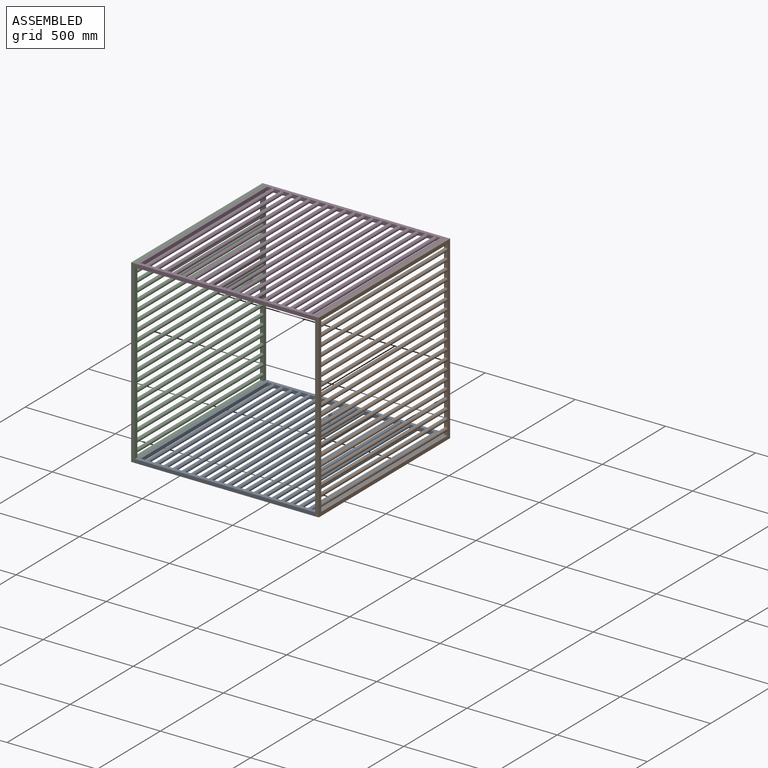
[diagram: assembled view]
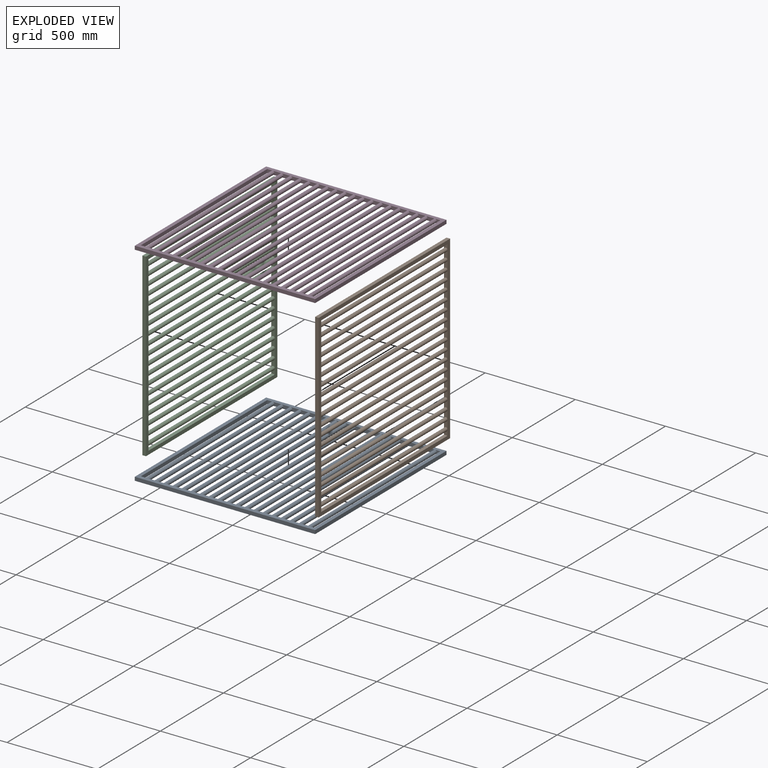
[diagram: exploded view]
GUIDED TOUR — MATED ASSEMBLY WITH SUBASSEMBLIES (Onshape document 1bd05485b785092733213c2f, AutoMate assembly 1bd05485b785092733213c2f_b403f58cdeab96ca88b5c3e0_9f642010b86d06a3bdad1627_default)

This assembly has 16 component occurrences arranged in 4 top-level units: 0 individual components plus 4 subassemblies (S0, S1, S2, S3). The tour has two levels: first the top level, where each subassembly is treated as one rigid unit; then each subassembly is toured internally in its own section (nesting deeper than one subassembly level is flattened into its subassembly's section).

Components are labeled P0..P15 across the whole record; subassembly units are labeled S0..S3. A mate is a constraint between two units; its type names the relative motion it leaves free:
  PLANAR — leaves sliding in the plane through the listed point (normal = the listed direction) and rotation about that normal free.
Axis/direction vectors are unit vectors and 'through' points are millimeter coordinates, both in the assembly's world frame.

TOP-LEVEL MATES (between units; each subassembly's internal mates are listed in its own section)
  1. PLANAR "Planar 8": S1 <-> S0, direction (0.000, 0.000, -1.000) through (-698.11, -170.96, -901.85) mm
  2. PLANAR "Planar 4": S1 <-> S3, direction (0.000, 0.000, 1.000) through (-698.11, -670.96, 98.15) mm
  3. PLANAR "Planar 7": S2 <-> S0, direction (0.000, 1.000, 0.000) through (-1718.11, 349.04, -401.85) mm
  4. PLANAR "Planar 2": S3 <-> S2, direction (-1.000, 0.000, 0.000) through (-1708.11, -170.96, 88.15) mm
  5. PLANAR "Planar 6": S0 <-> S1, direction (0.000, -1.000, 0.000) through (-708.11, -690.96, -881.85) mm
  6. PLANAR "Planar 5": S0 <-> S1, direction (1.000, 0.000, 0.000) through (-708.11, -170.96, -891.85) mm
  7. PLANAR "Planar 3": S3 <-> S2, direction (0.000, 0.000, 1.000) through (-1698.11, -170.96, 98.15) mm
  8. PLANAR "Planar 1": S3 <-> S1, direction (1.000, 0.000, 0.000) through (-708.11, -170.96, 88.15) mm

TOP-LEVEL ASSEMBLY ORDER
  1. S3 — the base component [order verified]
  2. S1 [order verified]
  3. S2 [order verified]
  4. S0 [order verified]
Order-tag legend:
  [order verified] — this step's position reverses a verified removal order: the component was checked to insert without passing through the ones already placed.

Of the 16 component occurrences, 4 carry the full construction recipe — the FeatureScript program that regenerates the part's solid from scratch; the rest are supplied as boundary geometry only. Each toured unit is shown spotlighted twice — assembled, then exploded with a leader line back to its socket (green = recipe-attached component, orange = geometry-only, blue = subassembly unit; the rest desaturated gray).
NOTE — this tour is split across 2 documents so each fits a 32k-token context. This is document 1: the component sections continue in the remaining 1 document, each repeating the header above.
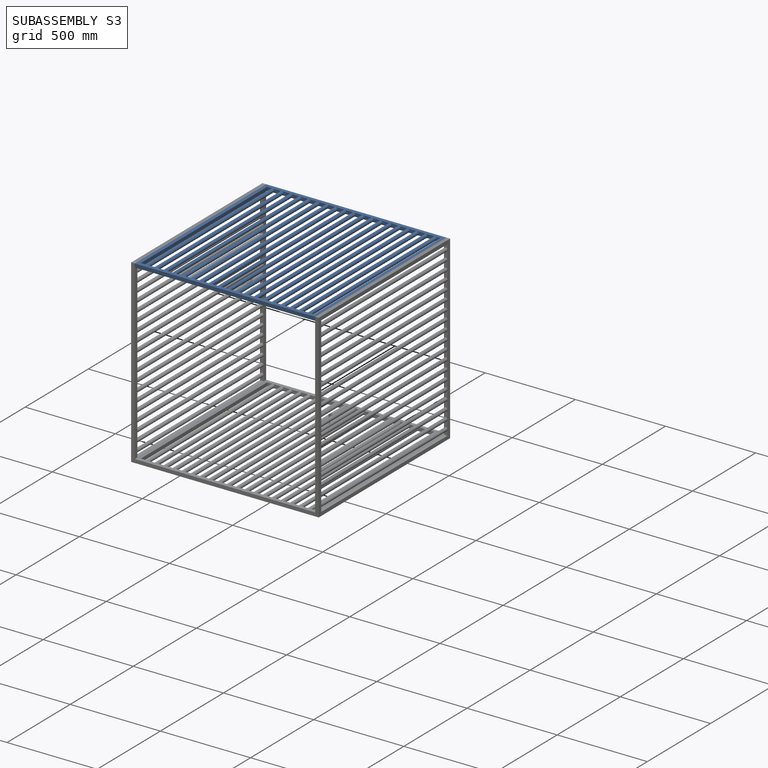
[diagram: subassembly S3 — assembled]
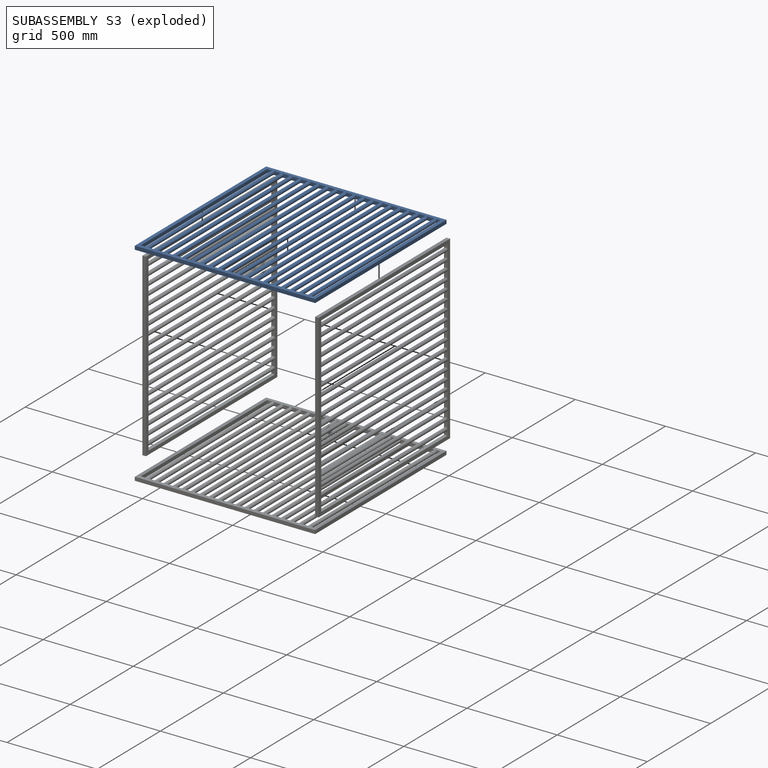
[diagram: subassembly S3 — exploded]
SUBASSEMBLY S3 — 4 components (P9, P10, P11, P15), of which 1 recipe-attached; toured below.
Held by: PLANAR mate "Planar 4" to S1; PLANAR mate "Planar 2" to S2; PLANAR mate "Planar 3" to S2; PLANAR mate "Planar 1" to S1.
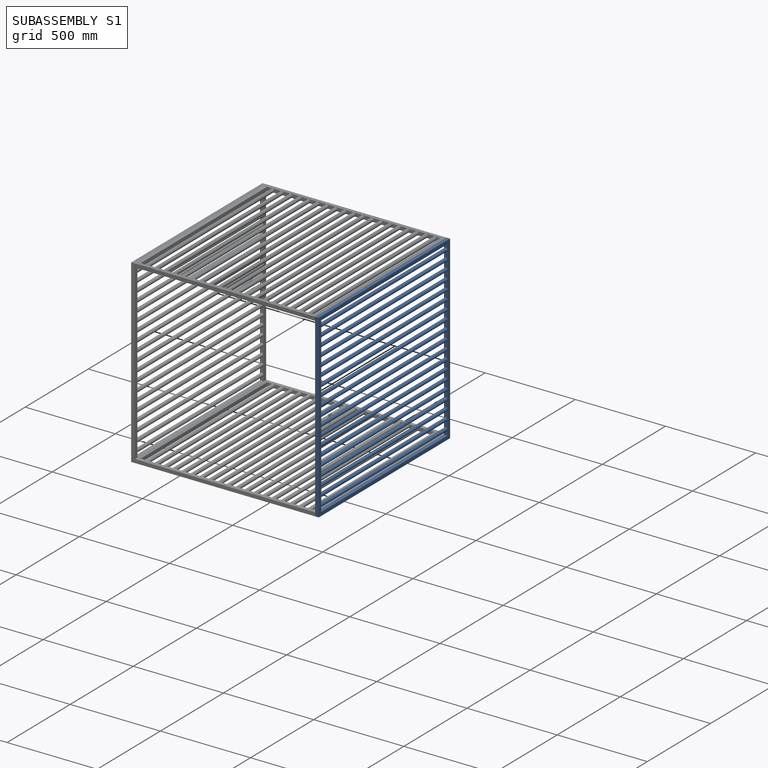
[diagram: subassembly S1 — assembled]
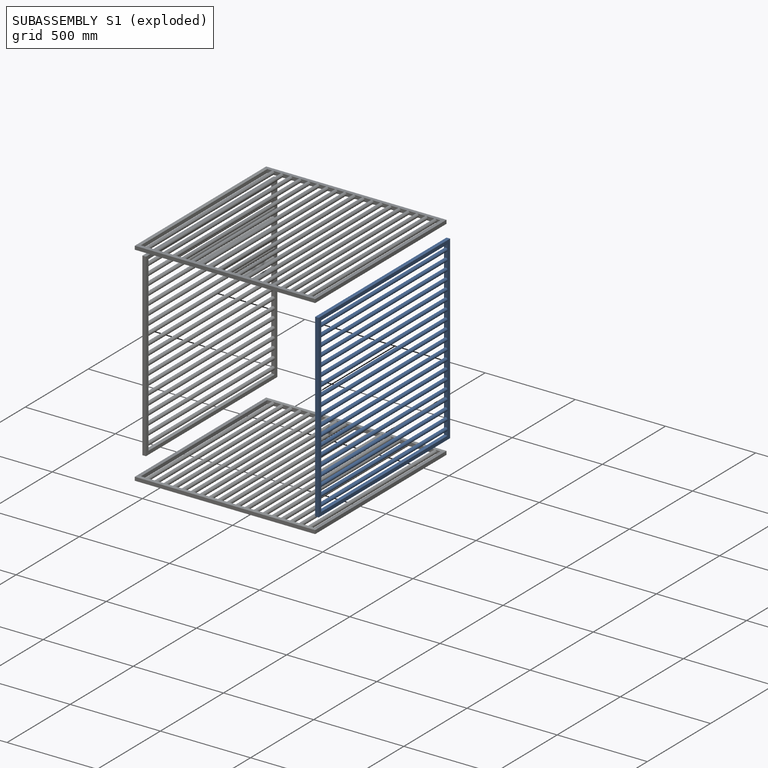
[diagram: subassembly S1 — exploded]
SUBASSEMBLY S1 — 4 components (P1, P3, P8, P14), of which 1 recipe-attached; toured below.
Held by: PLANAR mate "Planar 8" to S0; PLANAR mate "Planar 4" to S3; PLANAR mate "Planar 6" to S0; PLANAR mate "Planar 5" to S0; PLANAR mate "Planar 1" to S3.
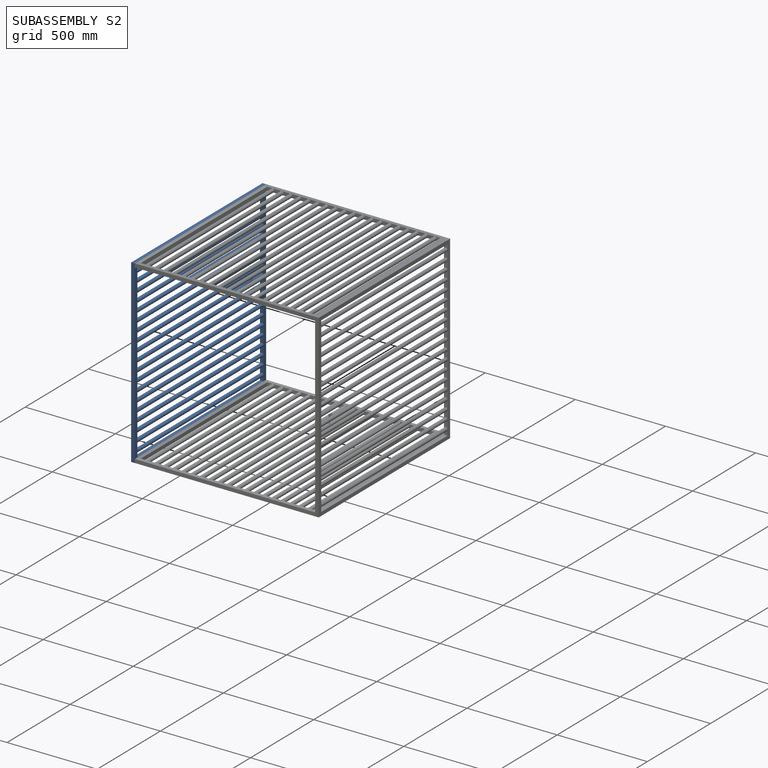
[diagram: subassembly S2 — assembled]
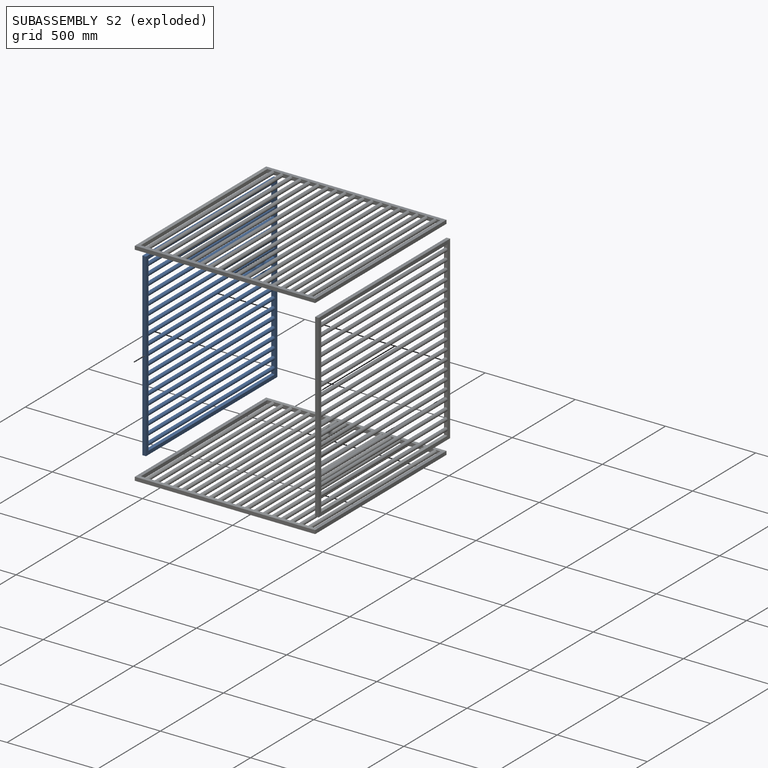
[diagram: subassembly S2 — exploded]
SUBASSEMBLY S2 — 4 components (P2, P4, P6, P13), of which 1 recipe-attached; toured below.
Held by: PLANAR mate "Planar 7" to S0; PLANAR mate "Planar 2" to S3; PLANAR mate "Planar 3" to S3.
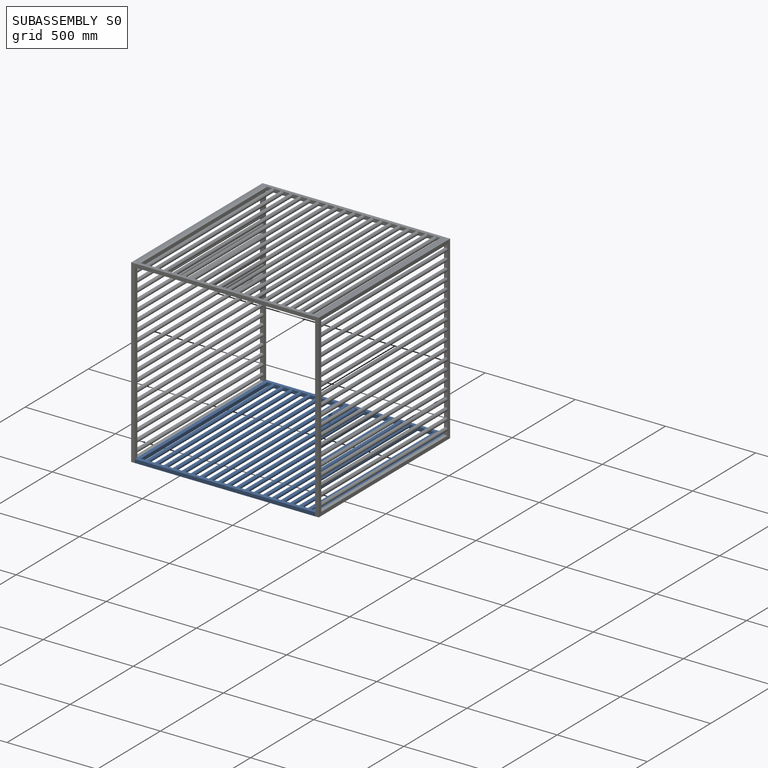
[diagram: subassembly S0 — assembled]
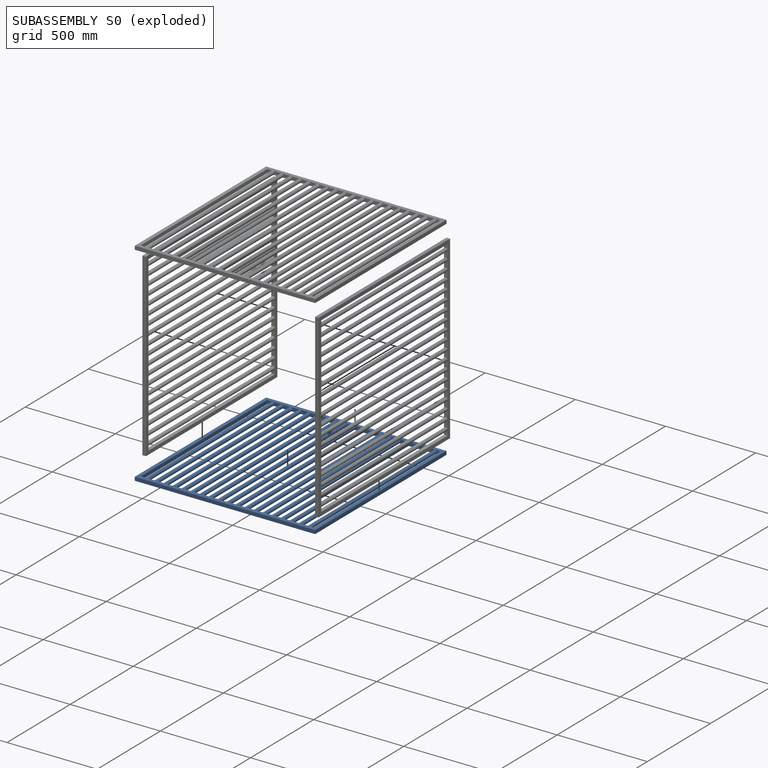
[diagram: subassembly S0 — exploded]
SUBASSEMBLY S0 — 4 components (P0, P5, P7, P12), of which 1 recipe-attached; toured below.
Held by: PLANAR mate "Planar 8" to S1; PLANAR mate "Planar 7" to S2; PLANAR mate "Planar 6" to S1; PLANAR mate "Planar 5" to S1.
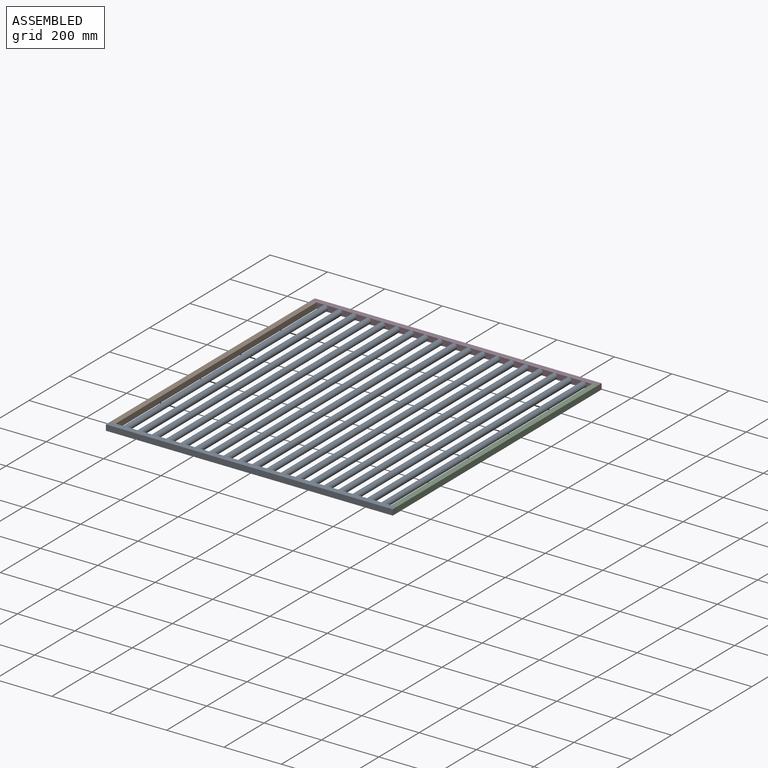
[diagram: subassembly S0 — assembled view]
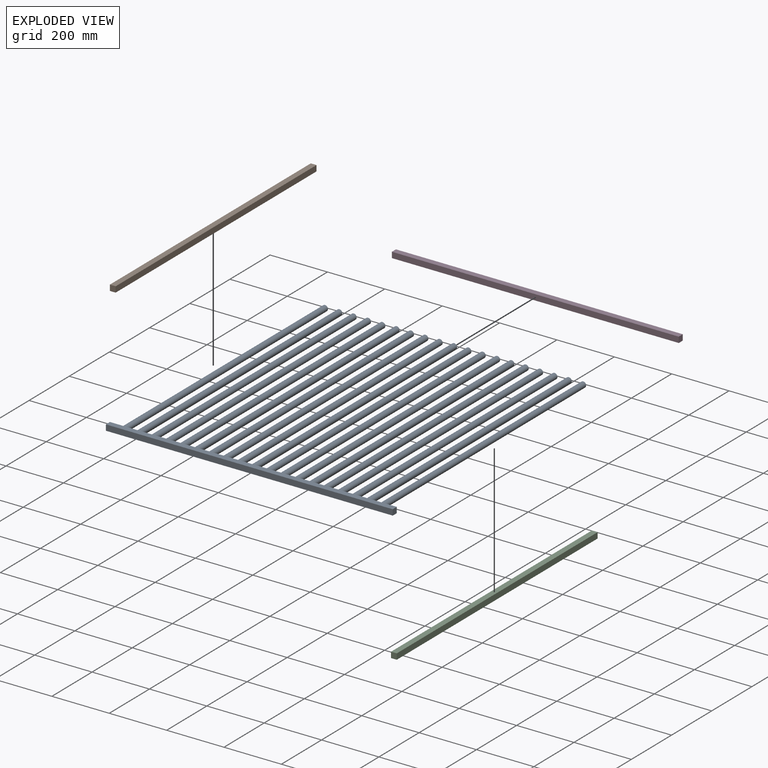
[diagram: subassembly S0 — exploded view]
SUBASSEMBLY S0 TOUR — 4 components, shown here in isolation at its own camera.

INTERNAL MATES
  1. PLANAR "Planar 6": P0 <-> P7, direction (0.000, 0.000, -1.000) through (-1208.11, -680.96, -901.85) mm
  2. PLANAR "Planar 5": P7 <-> P0, direction (0.000, -1.000, 0.000) through (-718.11, -670.96, -891.85) mm
  3. PLANAR "Planar 3": P12 <-> P7, direction (0.000, 0.000, -1.000) through (-1208.11, 339.04, -901.85) mm
  4. PLANAR "Planar 2": P5 <-> P12, direction (-1.000, 0.000, 0.000) through (-1708.11, -170.96, -891.85) mm
  5. PLANAR "Planar 4": P7 <-> P12, direction (1.000, 0.000, 0.000) through (-708.11, -170.96, -891.85) mm
  6. PLANAR "Planar 1": P12 <-> P5, direction (0.000, 0.000, -1.000) through (-1208.11, 339.04, -901.85) mm
  7. PLANAR "Planar 7": P0 <-> P5, direction (-1.000, 0.000, 0.000) through (-1708.11, -680.96, -891.85) mm

ASSEMBLY ORDER (within the subassembly)
  1. P0 — the base component [order verified]
  2. P5 [order verified]
  3. P7 [order verified]
  4. P12 [order verified]
Order-tag legend:
  [order verified] — this step's position reverses a verified removal order: the component was checked to insert without passing through the ones already placed.
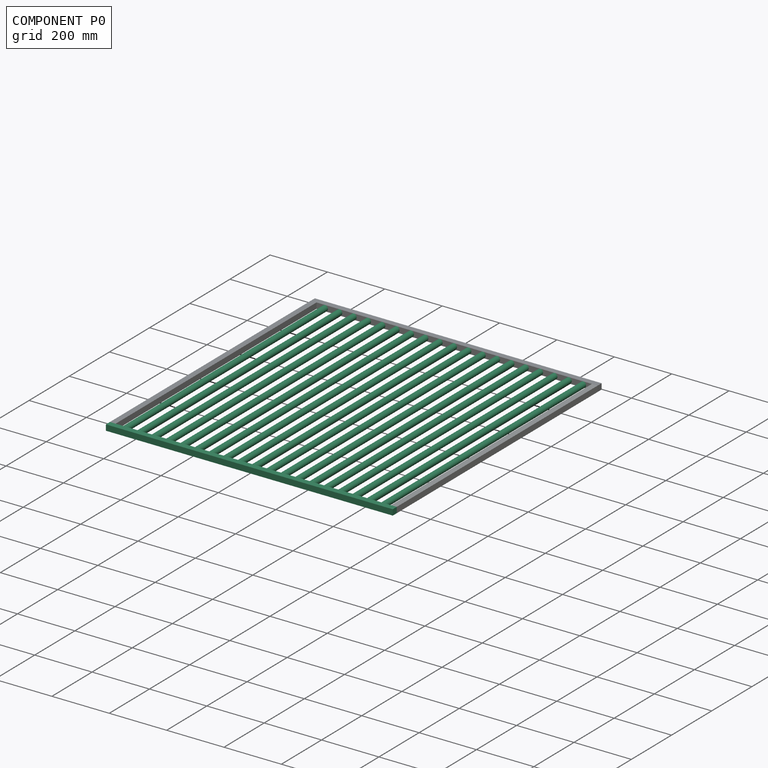
[diagram: component P0 — assembled]
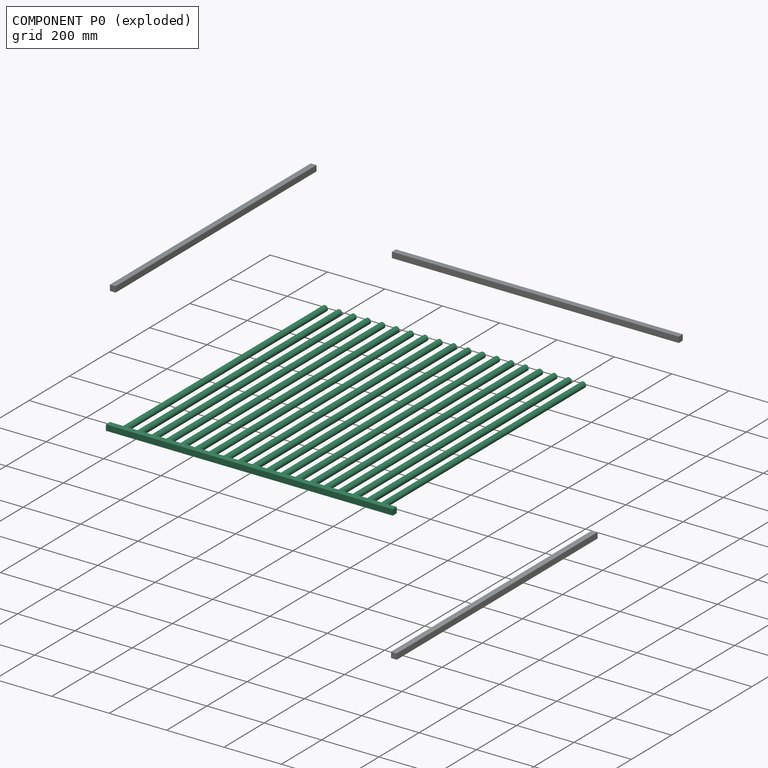
[diagram: component P0 — exploded]
COMPONENT P0 — recipe-attached (CADFS 00156096, mesh-verified: the recipe's output STEP matches this component's geometry to below the mesh-comparison resolution (tessellation chordal tolerance ~2.14 mm)).
Held by: PLANAR mate "Planar 6" to P7; PLANAR mate "Planar 5" to P7; PLANAR mate "Planar 7" to P5.
Construction recipe (FeatureScript — the CAD program that rebuilds this solid; sketch coordinates are in the units given by the * unit suffixes, e.g. mm):

FeatureScript 1511;
import(path : "onshape/std/geometry.fs", version : "1511.0");
import(path : "onshape/std/common.fs", version : "1511.0");
const mm = millimeter;
const VERTEX = EntityType.VERTEX;
const EDGE = EntityType.EDGE;
const FACE = EntityType.FACE;
const BODY = EntityType.BODY;
function v(x, y){return vector(x, y);}
function OD(order){return orderDisambiguation(order);}
function OSD(set){return originalSetDisambiguation(set);}
function TD(topology){return topologyDisambiguation(topology);}
function TDD(query){return trueDependencyDisambiguation(query);}
function sQuery(a, b, c) {return sketchEntityQuery(a, b, c);}

annotation { "Feature Type Name" : "Feature", "Feature Type Description" : "" }
export const myFeature = defineFeature(function(context is Context, id is Id, definition is map)
    precondition{}
    {
        {
            var Q0;
            Q0=qCreatedBy(makeId("Front.planeOp"),FACE);
            var sketch = newSketch(context, id + "F0", { "sketchPlane" : qUnion([Q0])});
            skLineSegment(sketch, "E0.bottom", {"start": v(0, 0) * mm, "end": v(20, 0) * mm});
            skLineSegment(sketch, "E0.top", {"start": v(0, 20) * mm, "end": v(20, 20) * mm});
            skLineSegment(sketch, "E0.left", {"start": v(0, 0) * mm, "end": v(0, 20) * mm});
            skLineSegment(sketch, "E0.right", {"start": v(20, 0) * mm, "end": v(20, 20) * mm});
            skSolve(sketch);
        }
        {
            var Q0;
            Q0=makeQuery(id+"F0.imprint","IMPRINT",FACE,{"disambiguationData":[TD([[makeQuery(id+"F0.imprint","IMPRINT",EDGE,{"derivedFrom":sQuery(id+"F0.wireOp",EDGE,"E0.bottom")}),1.0]])]});
            extrude(context, id + "F1", {"entities" : qUnion([Q0]), "depth" : 1000 * mm});
        }
        {
            var Q0;
            Q0=makeQuery(id+"F1.opExtrude","SWEPT_FACE",FACE,{"disambiguationData":[OSD([sQuery(id+"F0.wireOp",EDGE,"E0.top")])]});
            var sketch = newSketch(context, id + "F2", { "sketchPlane" : qUnion([Q0])});
            skCircle(sketch, "E1", {"center": v(10, -50) * mm, "radius": 10 * mm});
            skCircle(sketch, "E2.0.1.0", {"center": v(10, -100) * mm, "radius": 10 * mm});
            skCircle(sketch, "E2.0.2.0", {"center": v(10, -150) * mm, "radius": 10 * mm});
            skCircle(sketch, "E2.0.3.0", {"center": v(10, -200) * mm, "radius": 10 * mm});
            skCircle(sketch, "E2.0.4.0", {"center": v(10, -250) * mm, "radius": 10 * mm});
            skCircle(sketch, "E2.0.5.0", {"center": v(10, -300) * mm, "radius": 10 * mm});
            skCircle(sketch, "E2.0.6.0", {"center": v(10, -350) * mm, "radius": 10 * mm});
            skCircle(sketch, "E2.0.7.0", {"center": v(10, -400) * mm, "radius": 10 * mm});
            skCircle(sketch, "E2.0.8.0", {"center": v(10, -450) * mm, "radius": 10 * mm});
            skCircle(sketch, "E2.0.9.0", {"center": v(10, -500) * mm, "radius": 10 * mm});
            skCircle(sketch, "E2.0.10.0", {"center": v(10, -550) * mm, "radius": 10 * mm});
            skCircle(sketch, "E2.0.11.0", {"center": v(10, -600) * mm, "radius": 10 * mm});
            skCircle(sketch, "E2.0.12.0", {"center": v(10, -650) * mm, "radius": 10 * mm});
            skCircle(sketch, "E2.0.13.0", {"center": v(10, -700) * mm, "radius": 10 * mm});
            skCircle(sketch, "E2.0.14.0", {"center": v(10, -750) * mm, "radius": 10 * mm});
            skCircle(sketch, "E2.0.15.0", {"center": v(10, -800) * mm, "radius": 10 * mm});
            skCircle(sketch, "E2.0.16.0", {"center": v(10, -850) * mm, "radius": 10 * mm});
            skCircle(sketch, "E2.0.17.0", {"center": v(10, -900) * mm, "radius": 10 * mm});
            skCircle(sketch, "E2.0.18.0", {"center": v(10, -950) * mm, "radius": 10 * mm});
            skLineSegment(sketch, "E2.direction1", {"start": v(10, -50) * mm, "end": v(-20.45, -50) * mm, "construction": true});
            skLineSegment(sketch, "E2.direction2", {"start": v(10, -50) * mm, "end": v(10, -100) * mm, "construction": true});
            skSolve(sketch);
        }
        {
            var Q0;
            Q0 = qSketchRegion(id + "F2", true);
            extrude(context, id + "F3", {"entities" : qUnion([Q0]), "operationType" : NewBodyOperationType.ADD, "depth" : 1000 * mm});
        }
    });
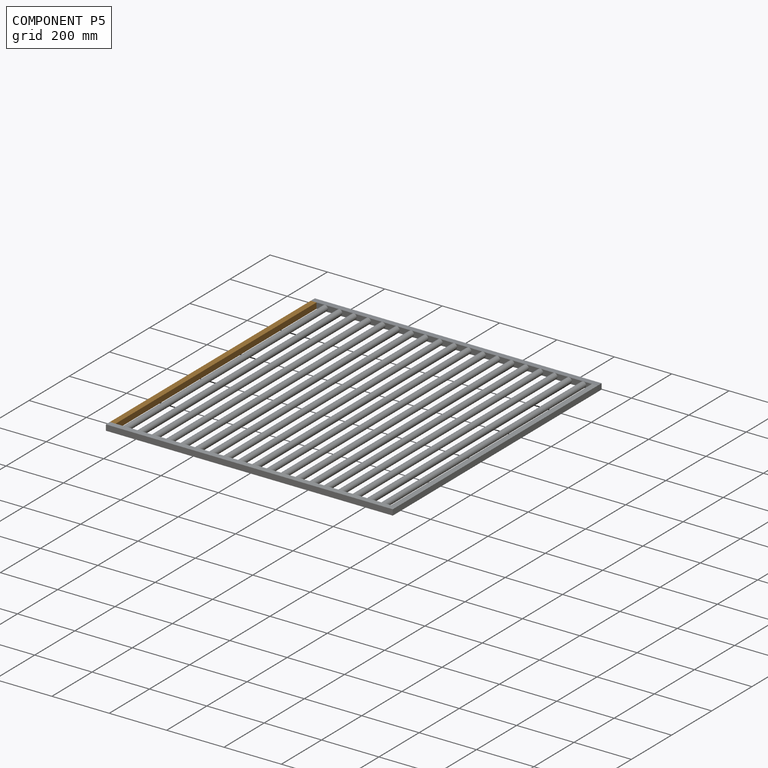
[diagram: component P5 — assembled]
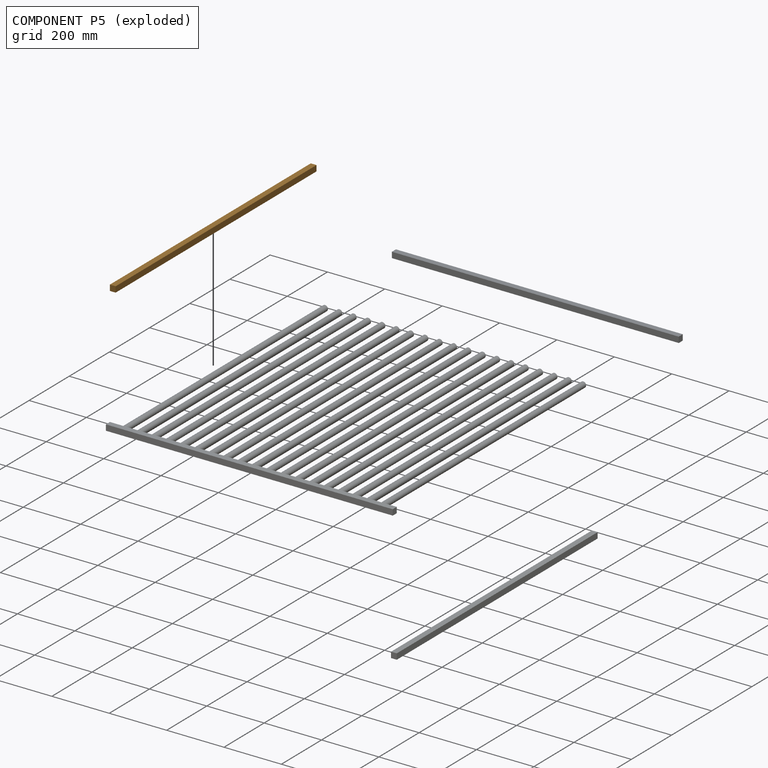
[diagram: component P5 — exploded]
COMPONENT P5 — geometry summary (no construction recipe available for this part):
  bounding box: 1000.0 x 20.0 x 20.0 mm
  B-rep topology: 1 solid, 6 faces, 24 edges
  volume: 400000 mm^3 (100% of its bounding box)
  symmetry: 2-fold rotationally symmetric about the x axis; revolution-symmetric about the y axis through its bounding-box center; 2-fold rotationally symmetric about the z axis; mirror-symmetric across its x mid-plane, y mid-plane, z mid-plane
Held by: PLANAR mate "Planar 2" to P12; PLANAR mate "Planar 1" to P12; PLANAR mate "Planar 7" to P0.
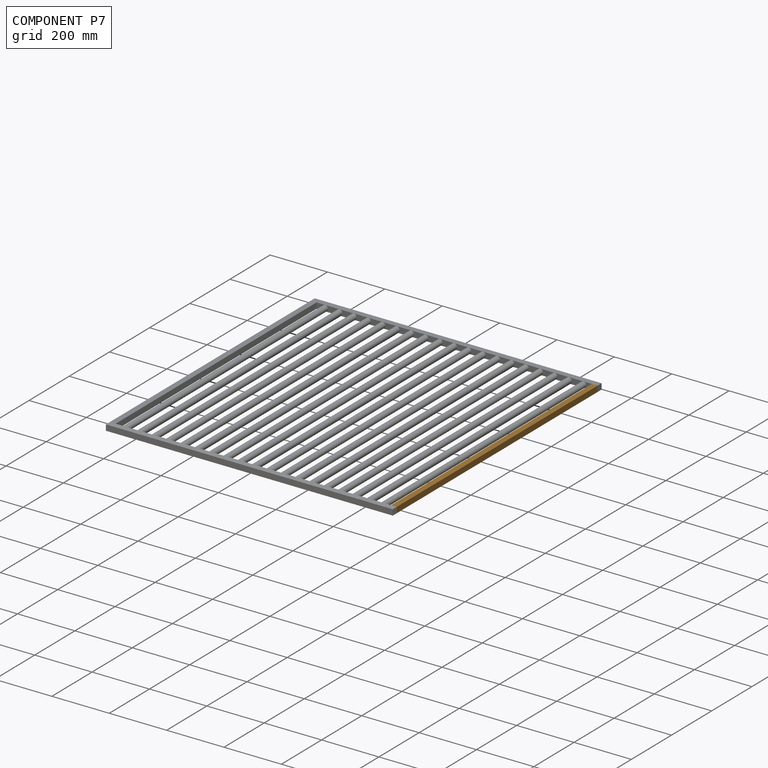
[diagram: component P7 — assembled]
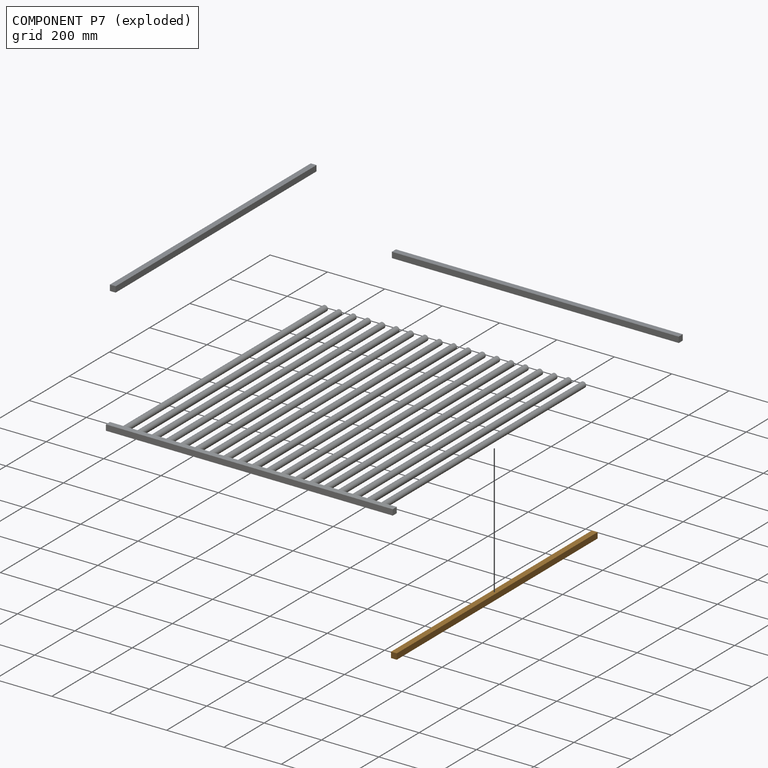
[diagram: component P7 — exploded]
COMPONENT P7 — geometry summary (no construction recipe available for this part):
  bounding box: 1000.0 x 20.0 x 20.0 mm
  B-rep topology: 1 solid, 6 faces, 24 edges
  volume: 400000 mm^3 (100% of its bounding box)
  symmetry: 2-fold rotationally symmetric about the x axis; revolution-symmetric about the y axis through its bounding-box center; 2-fold rotationally symmetric about the z axis; mirror-symmetric across its x mid-plane, y mid-plane, z mid-plane
Held by: PLANAR mate "Planar 6" to P0; PLANAR mate "Planar 5" to P0; PLANAR mate "Planar 3" to P12; PLANAR mate "Planar 4" to P12.
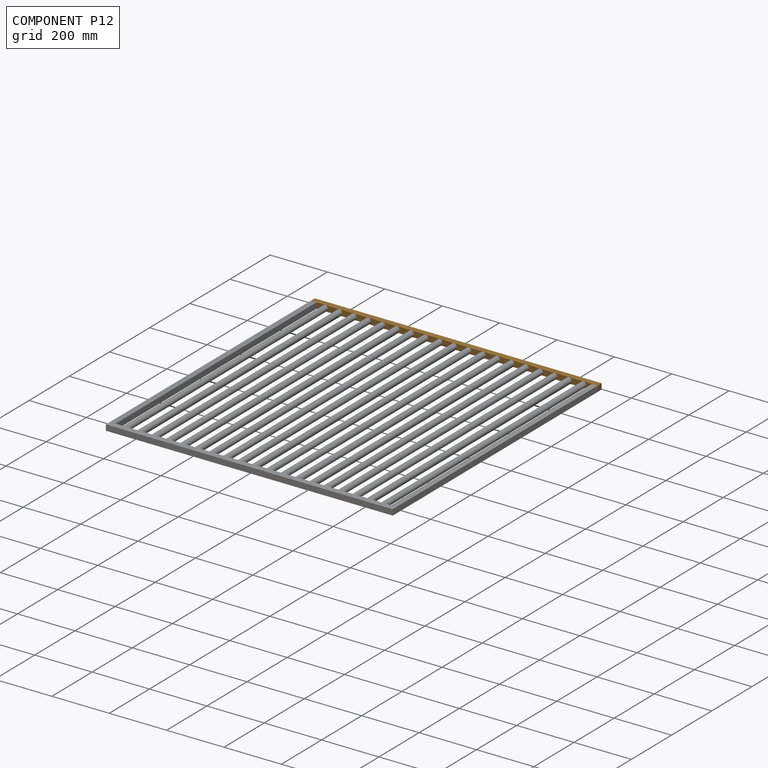
[diagram: component P12 — assembled]
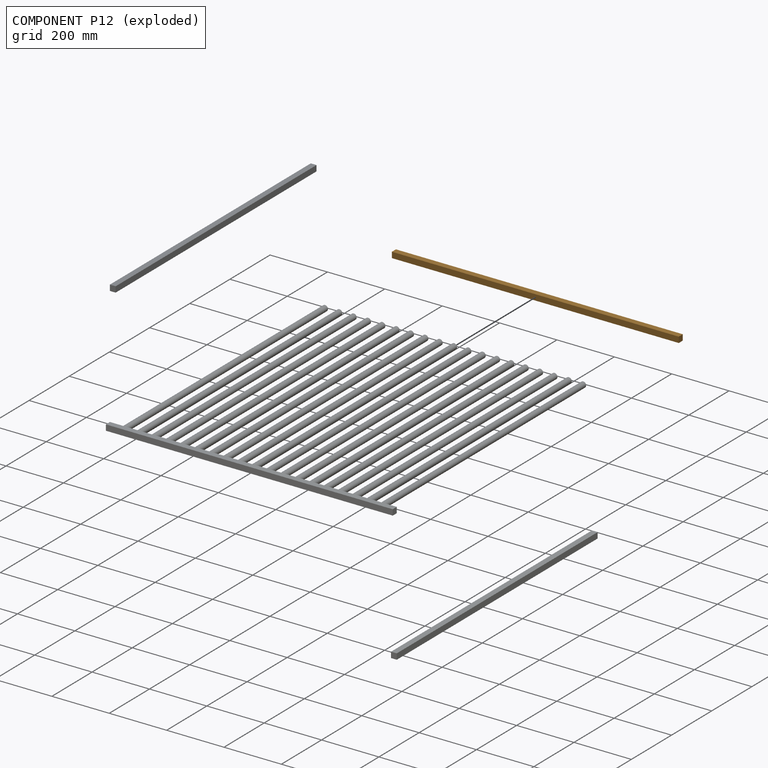
[diagram: component P12 — exploded]
COMPONENT P12 — geometry summary (no construction recipe available for this part):
  bounding box: 1000.0 x 20.0 x 20.0 mm
  B-rep topology: 1 solid, 6 faces, 24 edges
  volume: 400000 mm^3 (100% of its bounding box)
  symmetry: 2-fold rotationally symmetric about the x axis; revolution-symmetric about the y axis through its bounding-box center; 2-fold rotationally symmetric about the z axis; mirror-symmetric across its x mid-plane, y mid-plane, z mid-plane
Held by: PLANAR mate "Planar 3" to P7; PLANAR mate "Planar 2" to P5; PLANAR mate "Planar 4" to P7; PLANAR mate "Planar 1" to P5.
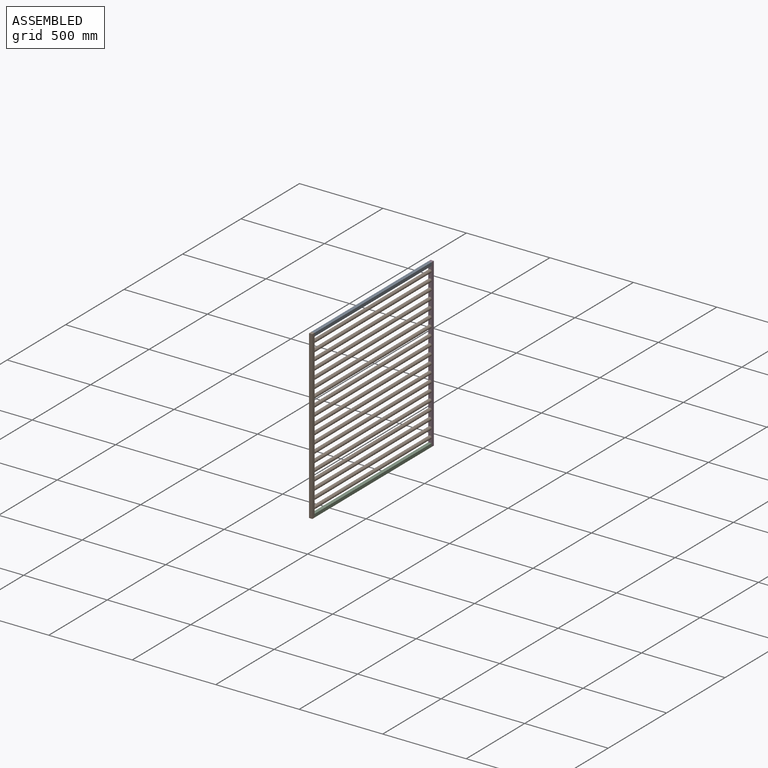
[diagram: subassembly S1 — assembled view]
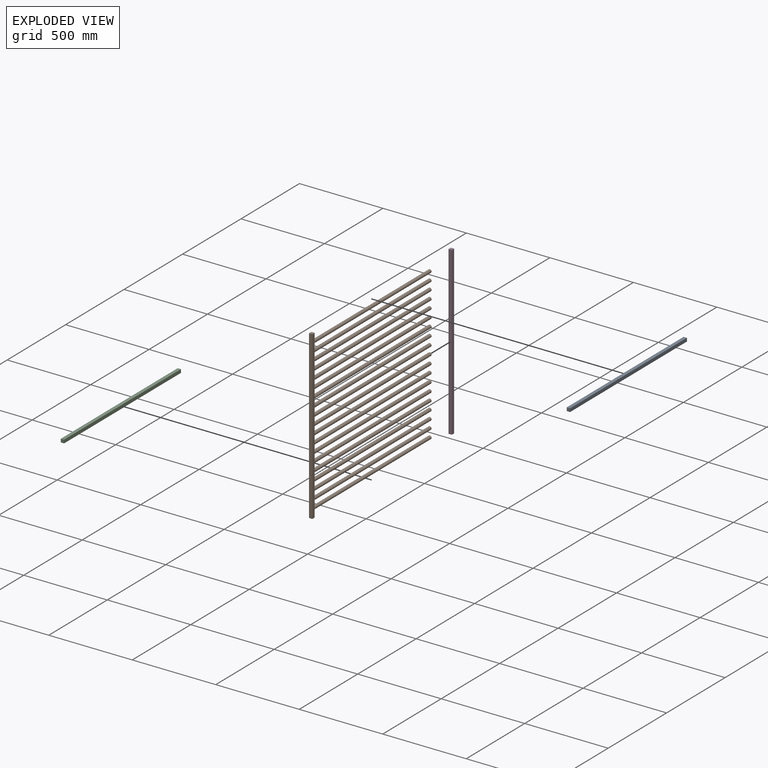
[diagram: subassembly S1 — exploded view]
SUBASSEMBLY S1 TOUR — 4 components, shown here in isolation at its own camera.

INTERNAL MATES
  1. PLANAR "Planar 3": P14 <-> P8, direction (-1.000, 0.000, 0.000) through (-708.11, 339.04, -401.85) mm
  2. PLANAR "Planar 1": P14 <-> P1, direction (-1.000, 0.000, 0.000) through (-708.11, 339.04, -401.85) mm
  3. PLANAR "Planar 7": P3 <-> P1, direction (0.000, 0.000, 1.000) through (-698.11, -680.96, 98.15) mm
  4. PLANAR "Planar 6": P3 <-> P8, direction (-1.000, 0.000, 0.000) through (-708.11, -680.96, -401.85) mm
  5. PLANAR "Planar 2": P1 <-> P14, direction (0.000, 0.000, 1.000) through (-698.11, -170.96, 98.15) mm
  6. PLANAR "Planar 4": P8 <-> P14, direction (0.000, 0.000, -1.000) through (-698.11, -170.96, -901.85) mm
  7. PLANAR "Planar 5": P8 <-> P3, direction (0.000, -1.000, 0.000) through (-698.11, -670.96, -891.85) mm

ASSEMBLY ORDER (within the subassembly)
  1. P3 — the base component [order verified]
  2. P1 [order verified]
  3. P8 [order verified]
  4. P14 [order verified]
Order-tag legend:
  [order verified] — this step's position reverses a verified removal order: the component was checked to insert without passing through the ones already placed.
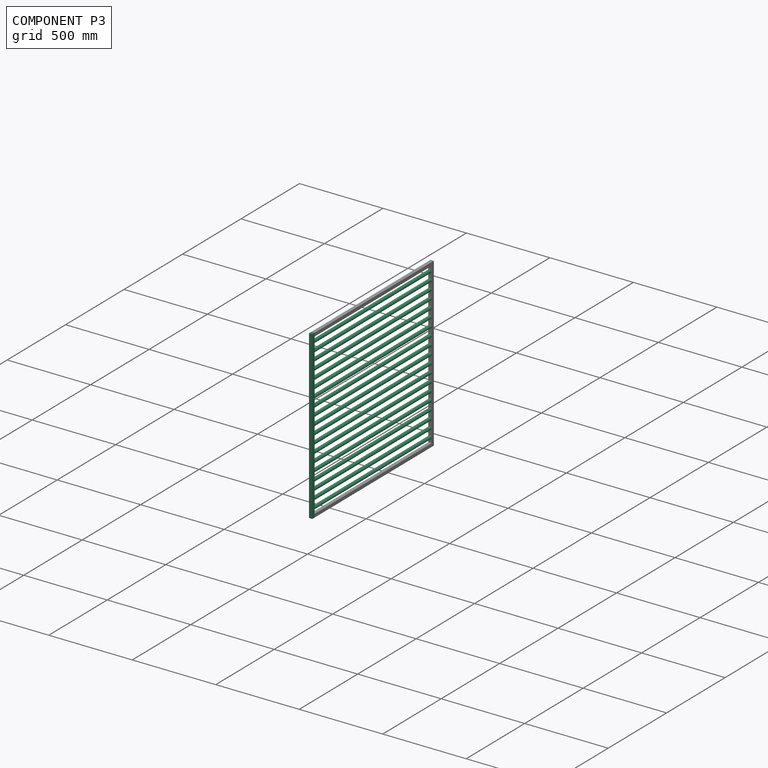
[diagram: component P3 — assembled]
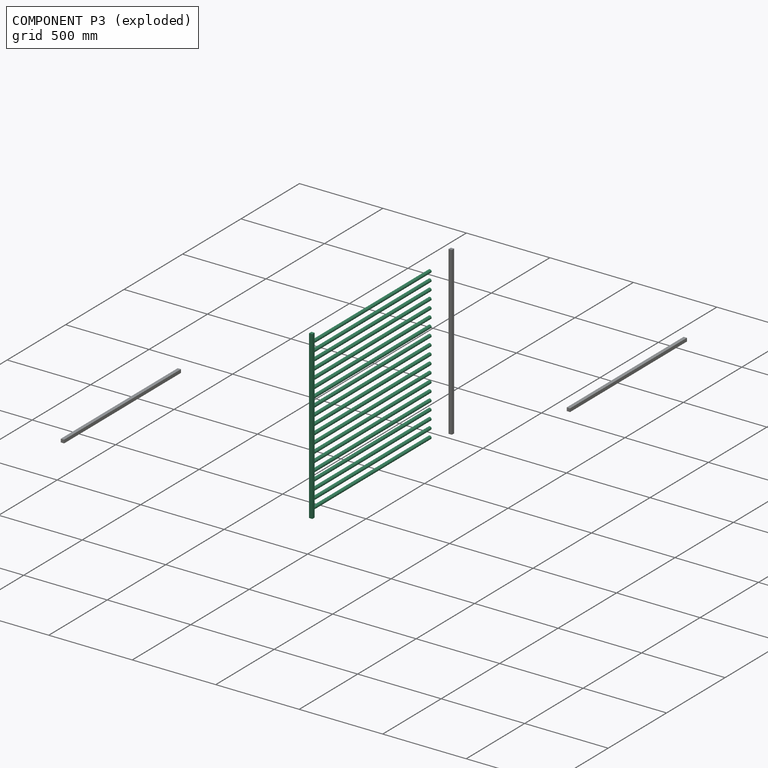
[diagram: component P3 — exploded]
COMPONENT P3 — recipe-attached (CADFS 00156096, mesh-verified: the recipe's output STEP matches this component's geometry to below the mesh-comparison resolution (tessellation chordal tolerance ~2.14 mm)).
Held by: PLANAR mate "Planar 7" to P1; PLANAR mate "Planar 6" to P8; PLANAR mate "Planar 5" to P8.
Construction recipe (FeatureScript — the CAD program that rebuilds this solid; sketch coordinates are in the units given by the * unit suffixes, e.g. mm):

FeatureScript 1511;
import(path : "onshape/std/geometry.fs", version : "1511.0");
import(path : "onshape/std/common.fs", version : "1511.0");
const mm = millimeter;
const VERTEX = EntityType.VERTEX;
const EDGE = EntityType.EDGE;
const FACE = EntityType.FACE;
const BODY = EntityType.BODY;
function v(x, y){return vector(x, y);}
function OD(order){return orderDisambiguation(order);}
function OSD(set){return originalSetDisambiguation(set);}
function TD(topology){return topologyDisambiguation(topology);}
function TDD(query){return trueDependencyDisambiguation(query);}
function sQuery(a, b, c) {return sketchEntityQuery(a, b, c);}

annotation { "Feature Type Name" : "Feature", "Feature Type Description" : "" }
export const myFeature = defineFeature(function(context is Context, id is Id, definition is map)
    precondition{}
    {
        {
            var Q0;
            Q0=qCreatedBy(makeId("Front.planeOp"),FACE);
            var sketch = newSketch(context, id + "F0", { "sketchPlane" : qUnion([Q0])});
            skLineSegment(sketch, "E0.bottom", {"start": v(0, 0) * mm, "end": v(20, 0) * mm});
            skLineSegment(sketch, "E0.top", {"start": v(0, 20) * mm, "end": v(20, 20) * mm});
            skLineSegment(sketch, "E0.left", {"start": v(0, 0) * mm, "end": v(0, 20) * mm});
            skLineSegment(sketch, "E0.right", {"start": v(20, 0) * mm, "end": v(20, 20) * mm});
            skSolve(sketch);
        }
        {
            var Q0;
            Q0=makeQuery(id+"F0.imprint","IMPRINT",FACE,{"disambiguationData":[TD([[makeQuery(id+"F0.imprint","IMPRINT",EDGE,{"derivedFrom":sQuery(id+"F0.wireOp",EDGE,"E0.bottom")}),1.0]])]});
            extrude(context, id + "F1", {"entities" : qUnion([Q0]), "depth" : 1000 * mm});
        }
        {
            var Q0;
            Q0=makeQuery(id+"F1.opExtrude","SWEPT_FACE",FACE,{"disambiguationData":[OSD([sQuery(id+"F0.wireOp",EDGE,"E0.top")])]});
            var sketch = newSketch(context, id + "F2", { "sketchPlane" : qUnion([Q0])});
            skCircle(sketch, "E1", {"center": v(10, -50) * mm, "radius": 10 * mm});
            skCircle(sketch, "E2.0.1.0", {"center": v(10, -100) * mm, "radius": 10 * mm});
            skCircle(sketch, "E2.0.2.0", {"center": v(10, -150) * mm, "radius": 10 * mm});
            skCircle(sketch, "E2.0.3.0", {"center": v(10, -200) * mm, "radius": 10 * mm});
            skCircle(sketch, "E2.0.4.0", {"center": v(10, -250) * mm, "radius": 10 * mm});
            skCircle(sketch, "E2.0.5.0", {"center": v(10, -300) * mm, "radius": 10 * mm});
            skCircle(sketch, "E2.0.6.0", {"center": v(10, -350) * mm, "radius": 10 * mm});
            skCircle(sketch, "E2.0.7.0", {"center": v(10, -400) * mm, "radius": 10 * mm});
            skCircle(sketch, "E2.0.8.0", {"center": v(10, -450) * mm, "radius": 10 * mm});
            skCircle(sketch, "E2.0.9.0", {"center": v(10, -500) * mm, "radius": 10 * mm});
            skCircle(sketch, "E2.0.10.0", {"center": v(10, -550) * mm, "radius": 10 * mm});
            skCircle(sketch, "E2.0.11.0", {"center": v(10, -600) * mm, "radius": 10 * mm});
            skCircle(sketch, "E2.0.12.0", {"center": v(10, -650) * mm, "radius": 10 * mm});
            skCircle(sketch, "E2.0.13.0", {"center": v(10, -700) * mm, "radius": 10 * mm});
            skCircle(sketch, "E2.0.14.0", {"center": v(10, -750) * mm, "radius": 10 * mm});
            skCircle(sketch, "E2.0.15.0", {"center": v(10, -800) * mm, "radius": 10 * mm});
            skCircle(sketch, "E2.0.16.0", {"center": v(10, -850) * mm, "radius": 10 * mm});
            skCircle(sketch, "E2.0.17.0", {"center": v(10, -900) * mm, "radius": 10 * mm});
            skCircle(sketch, "E2.0.18.0", {"center": v(10, -950) * mm, "radius": 10 * mm});
            skLineSegment(sketch, "E2.direction1", {"start": v(10, -50) * mm, "end": v(-20.45, -50) * mm, "construction": true});
            skLineSegment(sketch, "E2.direction2", {"start": v(10, -50) * mm, "end": v(10, -100) * mm, "construction": true});
            skSolve(sketch);
        }
        {
            var Q0;
            Q0 = qSketchRegion(id + "F2", true);
            extrude(context, id + "F3", {"entities" : qUnion([Q0]), "operationType" : NewBodyOperationType.ADD, "depth" : 1000 * mm});
        }
    });
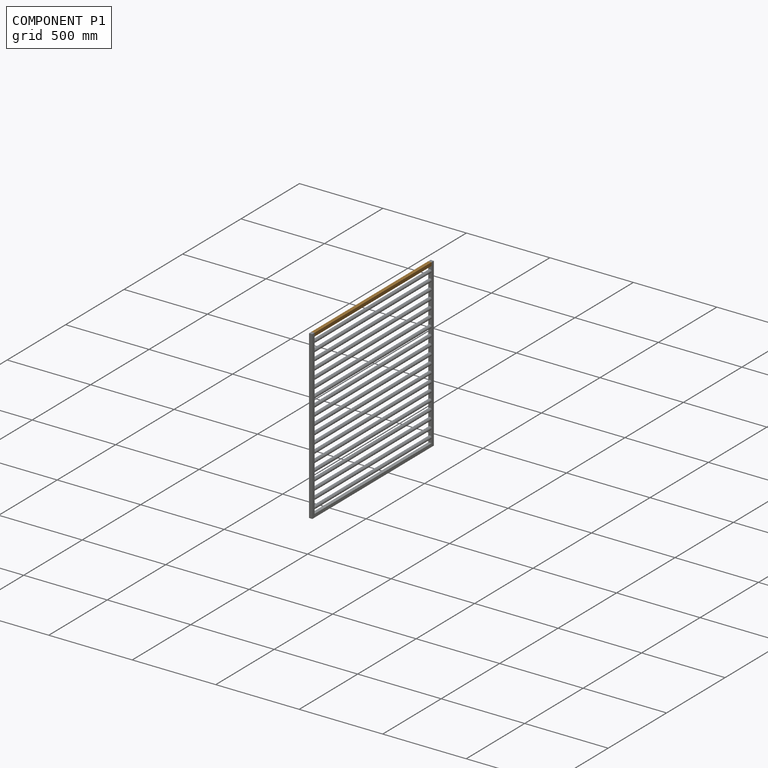
[diagram: component P1 — assembled]
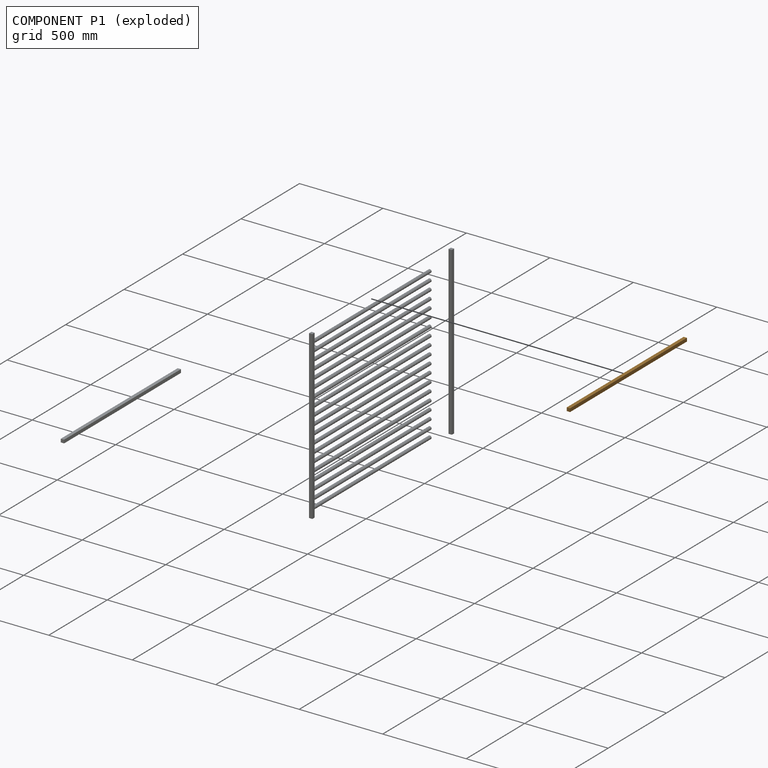
[diagram: component P1 — exploded]
COMPONENT P1 — geometry summary (no construction recipe available for this part):
  bounding box: 1000.0 x 20.0 x 20.0 mm
  B-rep topology: 1 solid, 6 faces, 24 edges
  volume: 400000 mm^3 (100% of its bounding box)
  symmetry: 2-fold rotationally symmetric about the x axis; revolution-symmetric about the y axis through its bounding-box center; 2-fold rotationally symmetric about the z axis; mirror-symmetric across its x mid-plane, y mid-plane, z mid-plane
Held by: PLANAR mate "Planar 1" to P14; PLANAR mate "Planar 7" to P3; PLANAR mate "Planar 2" to P14.
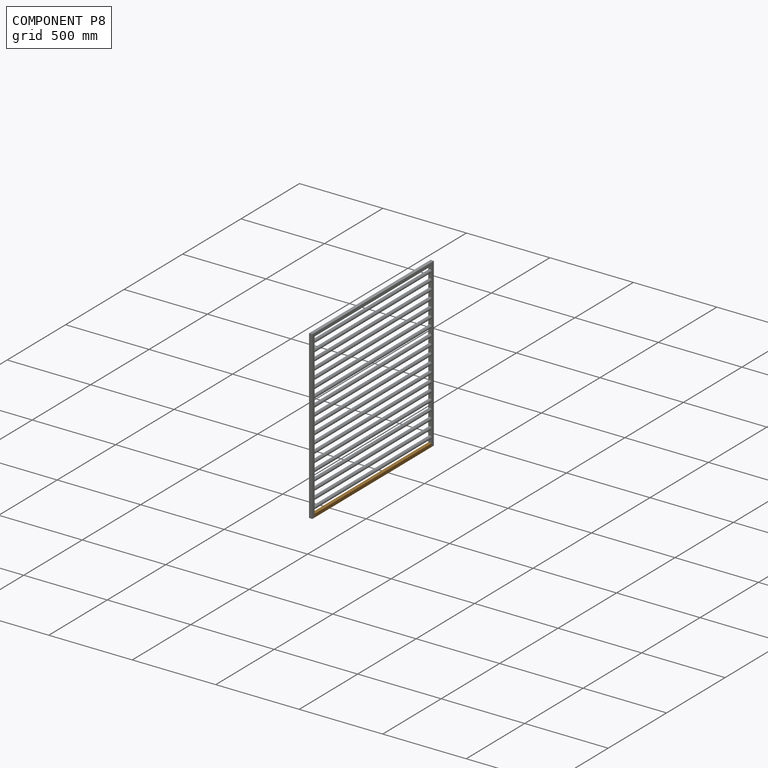
[diagram: component P8 — assembled]
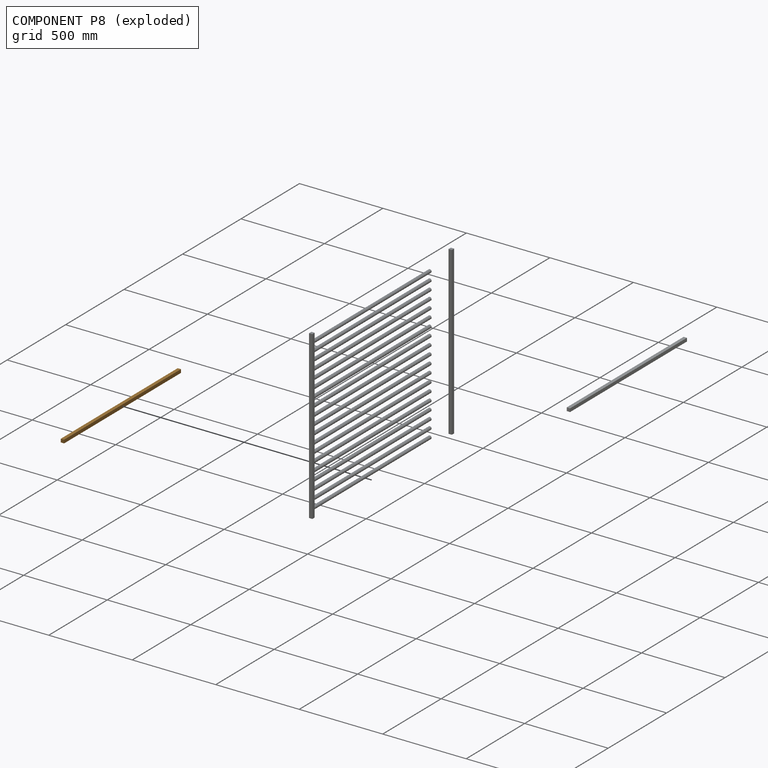
[diagram: component P8 — exploded]
COMPONENT P8 — geometry summary (no construction recipe available for this part):
  bounding box: 1000.0 x 20.0 x 20.0 mm
  B-rep topology: 1 solid, 6 faces, 24 edges
  volume: 400000 mm^3 (100% of its bounding box)
  symmetry: 2-fold rotationally symmetric about the x axis; revolution-symmetric about the y axis through its bounding-box center; 2-fold rotationally symmetric about the z axis; mirror-symmetric across its x mid-plane, y mid-plane, z mid-plane
Held by: PLANAR mate "Planar 3" to P14; PLANAR mate "Planar 6" to P3; PLANAR mate "Planar 4" to P14; PLANAR mate "Planar 5" to P3.
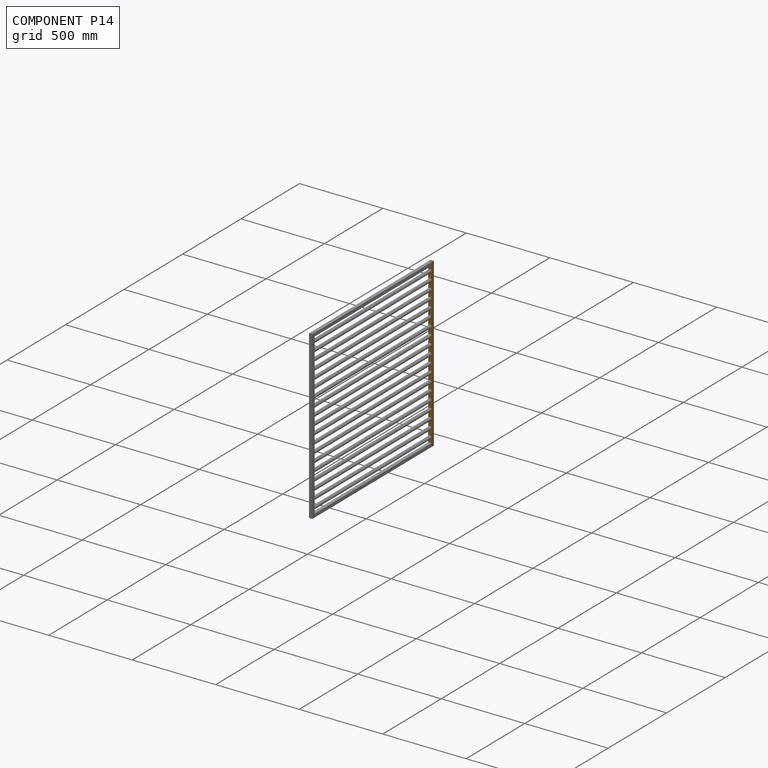
[diagram: component P14 — assembled]
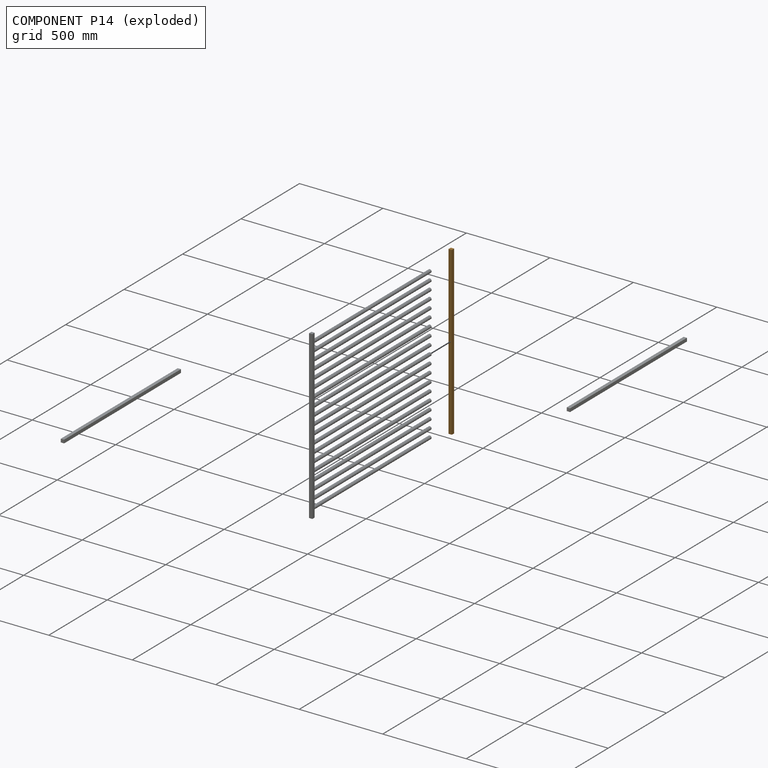
[diagram: component P14 — exploded]
COMPONENT P14 — geometry summary (no construction recipe available for this part):
  bounding box: 1000.0 x 20.0 x 20.0 mm
  B-rep topology: 1 solid, 6 faces, 24 edges
  volume: 400000 mm^3 (100% of its bounding box)
  symmetry: 2-fold rotationally symmetric about the x axis; revolution-symmetric about the y axis through its bounding-box center; 2-fold rotationally symmetric about the z axis; mirror-symmetric across its x mid-plane, y mid-plane, z mid-plane
Held by: PLANAR mate "Planar 3" to P8; PLANAR mate "Planar 1" to P1; PLANAR mate "Planar 2" to P1; PLANAR mate "Planar 4" to P8.
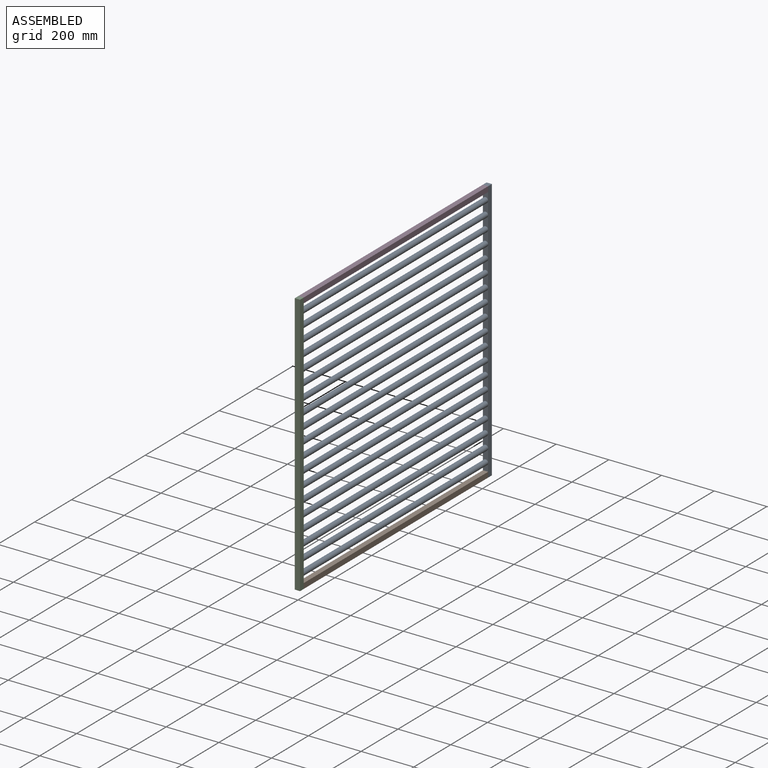
[diagram: subassembly S2 — assembled view]
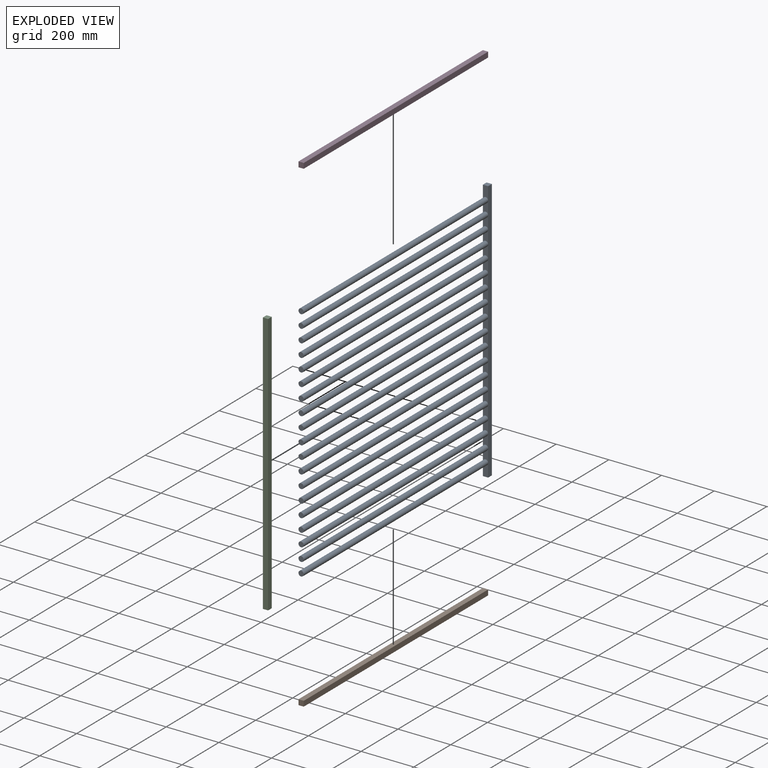
[diagram: subassembly S2 — exploded view]
SUBASSEMBLY S2 TOUR — 4 components, shown here in isolation at its own camera.

INTERNAL MATES
  1. PLANAR "Planar 5": P13 <-> P2, direction (0.000, 1.000, 0.000) through (-1718.11, 329.04, 88.15) mm
  2. PLANAR "Planar 4": P13 <-> P6, direction (0.000, 0.000, 1.000) through (-1718.11, -170.96, 98.15) mm
  3. PLANAR "Planar 2": P4 <-> P6, direction (0.000, 0.000, -1.000) through (-1718.11, -170.96, -901.85) mm
  4. PLANAR "Planar 7": P2 <-> P4, direction (0.000, 0.000, -1.000) through (-1718.11, 339.04, -901.85) mm
  5. PLANAR "Planar 6": P2 <-> P13, direction (-1.000, 0.000, 0.000) through (-1728.11, 339.04, -401.85) mm
  6. PLANAR "Planar 1": P6 <-> P4, direction (-1.000, 0.000, 0.000) through (-1728.11, -680.96, -401.85) mm
  7. PLANAR "Planar 3": P6 <-> P13, direction (-1.000, 0.000, 0.000) through (-1728.11, -680.96, -401.85) mm

ASSEMBLY ORDER (within the subassembly)
  1. P2 — the base component [order verified]
  2. P4 [order verified]
  3. P13 [order verified]
  4. P6 [order verified]
Order-tag legend:
  [order verified] — this step's position reverses a verified removal order: the component was checked to insert without passing through the ones already placed.
